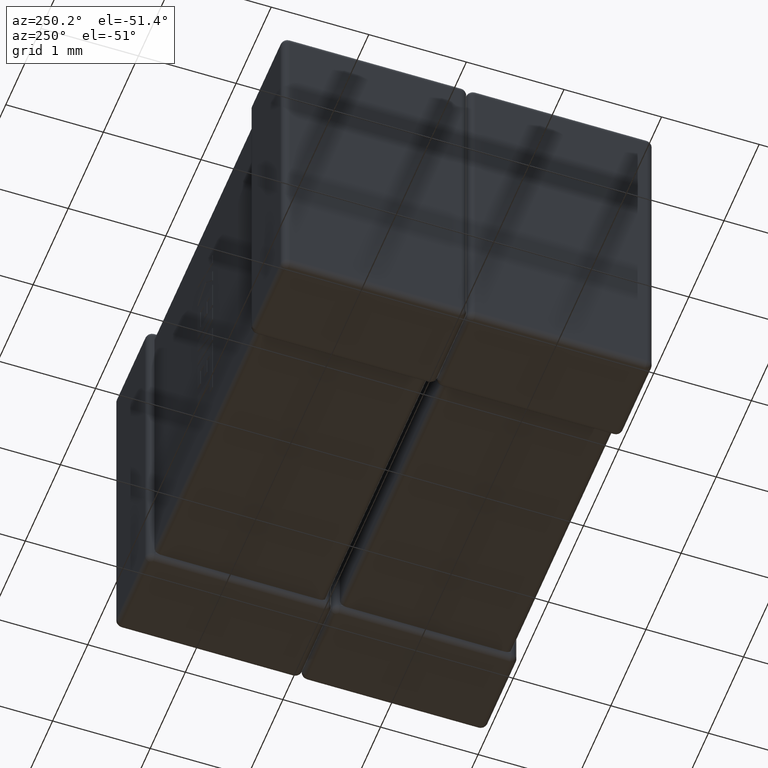
[diagram: clean part render]
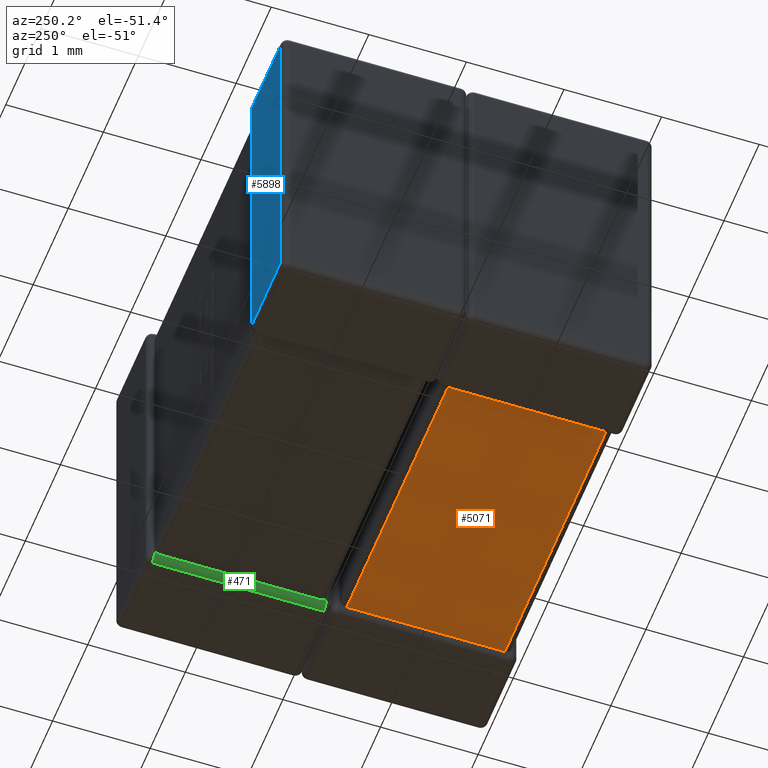
[diagram: same view with three faces highlighted in distinct colors, each labeled with its STEP entity id]
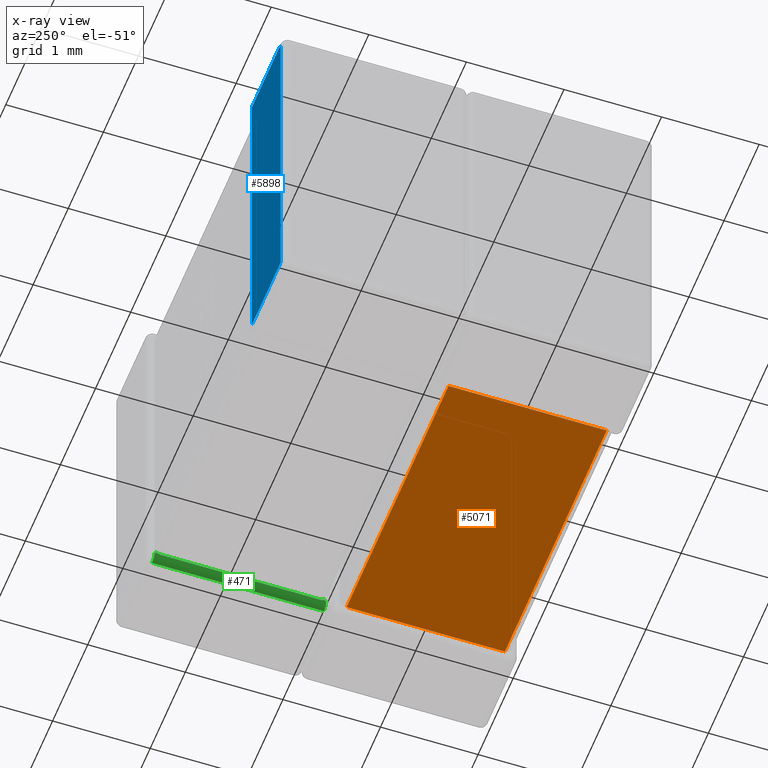
[diagram: x-ray of the same camera — body ghosted, the three highlighted faces saturated]
A machine part, auxiliary view with three faces highlighted in distinct colors.
The next image is the same camera in x-ray (body ghosted, the three faces saturated) — at least one of them is partly hidden behind the body in this view.
Their STEP definitions:

[orange] entity #5071 — the highlighted planar face has unit normal (0, 0, 1).
#65 = VERTEX_POINT ( 'NONE', #4843 ) ;
#176 = CARTESIAN_POINT ( 'NONE',  ( 0.9500000000000002887, 1.760000000000000009, -3.429999999999998828 ) ) ;
#547 = ORIENTED_EDGE ( 'NONE', *, *, #615, .F. ) ;
#615 = EDGE_CURVE ( 'NONE', #7312, #642, #2645, .T. ) ;
#642 = VERTEX_POINT ( 'NONE', #3820 ) ;
#774 = CARTESIAN_POINT ( 'NONE',  ( 3.849999999999999201, 0.1399999999999995415, -3.429999999999999716 ) ) ;
#973 = EDGE_LOOP ( 'NONE', ( #547, #2529, #3334, #4689 ) ) ;
#1096 = CARTESIAN_POINT ( 'NONE',  ( 0.9499999999999999556, 0.1399999999999995415, -3.429999999999998828 ) ) ;
#1136 = DIRECTION ( 'NONE',  ( -1.000000000000000000, 0.000000000000000000, 2.990902544787600071E-16 ) ) ;
#1615 = VECTOR ( 'NONE', #1136, 1000.000000000000000 ) ;
#1655 = CARTESIAN_POINT ( 'NONE',  ( 0.9500000000000002887, 0.000000000000000000, -3.429999999999998828 ) ) ;
#2100 = DIRECTION ( 'NONE',  ( 2.990902544787600071E-16, 0.000000000000000000, 1.000000000000000000 ) ) ;
#2108 = DIRECTION ( 'NONE',  ( -0.000000000000000000, 1.000000000000000000, -0.000000000000000000 ) ) ;
#2115 = EDGE_CURVE ( 'NONE', #7312, #65, #4350, .T. ) ;
#2139 = FACE_OUTER_BOUND ( 'NONE', #973, .T. ) ;
#2529 = ORIENTED_EDGE ( 'NONE', *, *, #2115, .T. ) ;
#2575 = LINE ( 'NONE', #4870, #3821 ) ;
#2645 = LINE ( 'NONE', #7189, #3088 ) ;
#2716 = PLANE ( 'NONE',  #5308 ) ;
#3088 = VECTOR ( 'NONE', #2108, 1000.000000000000000 ) ;
#3097 = EDGE_CURVE ( 'NONE', #7301, #642, #2575, .T. ) ;
#3316 = EDGE_CURVE ( 'NONE', #65, #7301, #5269, .T. ) ;
#3334 = ORIENTED_EDGE ( 'NONE', *, *, #3316, .T. ) ;
#3776 = CARTESIAN_POINT ( 'NONE',  ( 0.9500000000000002887, 0.000000000000000000, -3.429999999999998828 ) ) ;
#3820 = CARTESIAN_POINT ( 'NONE',  ( 3.849999999999999201, 1.760000000000000009, -3.429999999999999716 ) ) ;
#3821 = VECTOR ( 'NONE', #4313, 1000.000000000000000 ) ;
#4313 = DIRECTION ( 'NONE',  ( 1.000000000000000000, 0.000000000000000000, -2.990902544787600071E-16 ) ) ;
#4350 = LINE ( 'NONE', #1096, #1615 ) ;
#4689 = ORIENTED_EDGE ( 'NONE', *, *, #3097, .T. ) ;
#4843 = CARTESIAN_POINT ( 'NONE',  ( 0.9500000000000002887, 0.1399999999999995415, -3.429999999999998828 ) ) ;
#4870 = CARTESIAN_POINT ( 'NONE',  ( 0.9500000000000002887, 1.760000000000000009, -3.429999999999998828 ) ) ;
#5004 = VECTOR ( 'NONE', #6630, 1000.000000000000000 ) ;
#5071 = ADVANCED_FACE ( 'NONE', ( #2139 ), #2716, .F. ) ;
#5269 = LINE ( 'NONE', #3776, #5004 ) ;
#5308 = AXIS2_PLACEMENT_3D ( 'NONE', #1655, #2100, #6185 ) ;
#6185 = DIRECTION ( 'NONE',  ( 1.000000000000000000, 0.000000000000000000, -2.990902544787600071E-16 ) ) ;
#6630 = DIRECTION ( 'NONE',  ( -0.000000000000000000, 1.000000000000000000, -0.000000000000000000 ) ) ;
#7189 = CARTESIAN_POINT ( 'NONE',  ( 3.849999999999999201, 0.000000000000000000, -3.429999999999999716 ) ) ;
#7301 = VERTEX_POINT ( 'NONE', #176 ) ;
#7312 = VERTEX_POINT ( 'NONE', #774 ) ;

[blue] entity #5898 — the highlighted planar face has unit normal (0, -1, 0).
#267 = CARTESIAN_POINT ( 'NONE',  ( 0.8800000000000023359, 3.799999999999999822, -3.429999999999999716 ) ) ;
#451 = EDGE_CURVE ( 'NONE', #4696, #1264, #5386, .T. ) ;
#662 = VECTOR ( 'NONE', #7227, 1000.000000000000000 ) ;
#758 = ORIENTED_EDGE ( 'NONE', *, *, #2212, .F. ) ;
#952 = VERTEX_POINT ( 'NONE', #4997 ) ;
#1034 = PLANE ( 'NONE',  #5307 ) ;
#1109 = VECTOR ( 'NONE', #2826, 1000.000000000000000 ) ;
#1131 = EDGE_CURVE ( 'NONE', #952, #5365, #1273, .T. ) ;
#1264 = VERTEX_POINT ( 'NONE', #267 ) ;
#1273 = LINE ( 'NONE', #5153, #2932 ) ;
#1645 = LINE ( 'NONE', #3987, #1109 ) ;
#1694 = LINE ( 'NONE', #4971, #662 ) ;
#2212 = EDGE_CURVE ( 'NONE', #5365, #4696, #1694, .T. ) ;
#2283 = FACE_OUTER_BOUND ( 'NONE', #4918, .T. ) ;
#2682 = ORIENTED_EDGE ( 'NONE', *, *, #2718, .F. ) ;
#2718 = EDGE_CURVE ( 'NONE', #1264, #952, #1645, .T. ) ;
#2826 = DIRECTION ( 'NONE',  ( 0.000000000000000000, 0.000000000000000000, 1.000000000000000000 ) ) ;
#2932 = VECTOR ( 'NONE', #7338, 1000.000000000000000 ) ;
#3342 = CARTESIAN_POINT ( 'NONE',  ( 4.799999999999999822, 3.799999999999999822, 0.000000000000000000 ) ) ;
#3420 = VECTOR ( 'NONE', #7038, 1000.000000000000000 ) ;
#3987 = CARTESIAN_POINT ( 'NONE',  ( 0.8800000000000023359, 3.799999999999999822, 0.000000000000000000 ) ) ;
#4191 = ORIENTED_EDGE ( 'NONE', *, *, #1131, .F. ) ;
#4213 = CARTESIAN_POINT ( 'NONE',  ( 0.06999999999999975686, 3.799999999999999822, -3.429999999999999716 ) ) ;
#4310 = CARTESIAN_POINT ( 'NONE',  ( 4.799999999999999822, 3.799999999999999822, -3.429999999999999716 ) ) ;
#4696 = VERTEX_POINT ( 'NONE', #4213 ) ;
#4918 = EDGE_LOOP ( 'NONE', ( #6263, #758, #4191, #2682 ) ) ;
#4971 = CARTESIAN_POINT ( 'NONE',  ( 0.06999999999999975686, 3.799999999999999822, -3.500000000000000000 ) ) ;
#4997 = CARTESIAN_POINT ( 'NONE',  ( 0.8800000000000023359, 3.799999999999999822, -0.07000000000000000666 ) ) ;
#5153 = CARTESIAN_POINT ( 'NONE',  ( 4.799999999999999822, 3.799999999999999822, -0.07000000000000000666 ) ) ;
#5307 = AXIS2_PLACEMENT_3D ( 'NONE', #3342, #7067, #6479 ) ;
#5365 = VERTEX_POINT ( 'NONE', #7128 ) ;
#5386 = LINE ( 'NONE', #4310, #3420 ) ;
#5898 = ADVANCED_FACE ( 'NONE', ( #2283 ), #1034, .F. ) ;
#6263 = ORIENTED_EDGE ( 'NONE', *, *, #451, .F. ) ;
#6479 = DIRECTION ( 'NONE',  ( 0.000000000000000000, 0.000000000000000000, 1.000000000000000000 ) ) ;
#7038 = DIRECTION ( 'NONE',  ( 1.000000000000000000, -0.000000000000000000, -0.000000000000000000 ) ) ;
#7067 = DIRECTION ( 'NONE',  ( 0.000000000000000000, -1.000000000000000000, 0.000000000000000000 ) ) ;
#7128 = CARTESIAN_POINT ( 'NONE',  ( 0.06999999999999975686, 3.799999999999999822, -0.07000000000000000666 ) ) ;
#7227 = DIRECTION ( 'NONE',  ( 0.000000000000000000, 0.000000000000000000, -1.000000000000000000 ) ) ;
#7338 = DIRECTION ( 'NONE',  ( -1.000000000000000000, 0.000000000000000000, 0.000000000000000000 ) ) ;

[green] entity #471 — the highlighted cylindrical surface (edge-blend (fillet) strip) has radius 0.07 mm, axis along (0, -1, 0).
#83 = DIRECTION ( 'NONE',  ( 0.000000000000000000, 0.000000000000000000, -1.000000000000000000 ) ) ;
#186 = ORIENTED_EDGE ( 'NONE', *, *, #519, .T. ) ;
#274 = EDGE_LOOP ( 'NONE', ( #5439, #1519, #5663, #2704, #5701, #5356, #6414, #186 ) ) ;
#435 = DIRECTION ( 'NONE',  ( 0.000000000000000000, -1.000000000000000000, 0.000000000000000000 ) ) ;
#471 = ADVANCED_FACE ( 'NONE', ( #880 ), #2063, .T. ) ;
#496 = LINE ( 'NONE', #4531, #1867 ) ;
#519 = EDGE_CURVE ( 'NONE', #1306, #2284, #3304, .T. ) ;
#527 = CARTESIAN_POINT ( 'NONE',  ( 3.849999999999999201, 2.040000000000000036, -3.429999999999999716 ) ) ;
#563 = AXIS2_PLACEMENT_3D ( 'NONE', #840, #2538, #4832 ) ;
#606 = DIRECTION ( 'NONE',  ( 0.000000000000000000, 0.000000000000000000, 1.000000000000000000 ) ) ;
#684 = AXIS2_PLACEMENT_3D ( 'NONE', #6368, #6258, #83 ) ;
#737 = CARTESIAN_POINT ( 'NONE',  ( 3.849999999999999201, 2.040000000000000036, -3.429999999999999716 ) ) ;
#796 = CIRCLE ( 'NONE', #684, 0.07000000000000018707 ) ;
#822 = CARTESIAN_POINT ( 'NONE',  ( 3.919999999999999929, 3.729999999999999982, -3.500000000000000000 ) ) ;
#840 = CARTESIAN_POINT ( 'NONE',  ( 3.919999999999999929, 3.799999999999999822, -3.429999999999999716 ) ) ;
#880 = FACE_OUTER_BOUND ( 'NONE', #274, .T. ) ;
#888 = CARTESIAN_POINT ( 'NONE',  ( 3.849999999999999201, 1.969999999999999973, -3.429999999999999716 ) ) ;
#1148 = EDGE_CURVE ( 'NONE', #2247, #1306, #796, .T. ) ;
#1306 = VERTEX_POINT ( 'NONE', #822 ) ;
#1345 = CARTESIAN_POINT ( 'NONE',  ( 3.850019257285294039, 3.678154872626992145, -3.427999792939853130 ) ) ;
#1438 = CARTESIAN_POINT ( 'NONE',  ( 3.853069838969055638, 1.990502525316941718, -3.409497474683058194 ) ) ;
#1460 = CARTESIAN_POINT ( 'NONE',  ( 3.851515069394535029, 3.704421954649305349, -3.414572994716811749 ) ) ;
#1462 = EDGE_CURVE ( 'NONE', #3910, #4036, #496, .T. ) ;
#1501 = CARTESIAN_POINT ( 'NONE',  ( 3.849999999999999201, 3.660000000000000586, -3.429999999999999716 ) ) ;
#1519 = ORIENTED_EDGE ( 'NONE', *, *, #1802, .T. ) ;
#1600 = CARTESIAN_POINT ( 'NONE',  ( 3.849999999999999645, 3.730000000000000870, -3.429999999999999716 ) ) ;
#1733 = EDGE_CURVE ( 'NONE', #4036, #5388, #4232, .T. ) ;
#1802 = EDGE_CURVE ( 'NONE', #4796, #5388, #3641, .T. ) ;
#1867 = VECTOR ( 'NONE', #3957, 1000.000000000000000 ) ;
#1929 = CARTESIAN_POINT ( 'NONE',  ( 3.849999999999999201, 2.032235114787159791, -3.429999999999999716 ) ) ;
#2063 = CYLINDRICAL_SURFACE ( 'NONE', #563, 0.07000000000000018707 ) ;
#2247 = VERTEX_POINT ( 'NONE', #2984 ) ;
#2284 = VERTEX_POINT ( 'NONE', #5156 ) ;
#2385 = EDGE_CURVE ( 'NONE', #5874, #3910, #5461, .T. ) ;
#2538 = DIRECTION ( 'NONE',  ( 0.000000000000000000, -1.000000000000000000, 0.000000000000000000 ) ) ;
#2587 = CARTESIAN_POINT ( 'NONE',  ( 3.849999999999999201, 3.660000000000000586, -3.429999999999999716 ) ) ;
#2704 = ORIENTED_EDGE ( 'NONE', *, *, #1462, .F. ) ;
#2984 = CARTESIAN_POINT ( 'NONE',  ( 3.849999999999999645, 3.730000000000000870, -3.429999999999999716 ) ) ;
#3044 = CARTESIAN_POINT ( 'NONE',  ( 3.853069838969055638, 1.990502525316941718, -3.409497474683058194 ) ) ;
#3071 = CARTESIAN_POINT ( 'NONE',  ( 3.850418438474917160, 3.691804557360128136, -3.422357598824251834 ) ) ;
#3304 = LINE ( 'NONE', #5003, #4717 ) ;
#3503 = CARTESIAN_POINT ( 'NONE',  ( 3.852013834189012442, 1.994468557925224372, -3.413239379723198130 ) ) ;
#3541 = CARTESIAN_POINT ( 'NONE',  ( 3.849966113360893782, 2.024364036696784996, -3.428671610840414719 ) ) ;
#3641 =( BOUNDED_CURVE ( )  B_SPLINE_CURVE ( 3, ( #888, #7087, #7198, #1438 ),
 .UNSPECIFIED., .F., .T. ) 
 B_SPLINE_CURVE_WITH_KNOTS ( ( 4, 4 ),
 ( 1.570796326794896558, 1.868047688116105443 ),
 .UNSPECIFIED. ) 
 CURVE ( )  GEOMETRIC_REPRESENTATION_ITEM ( )  RATIONAL_B_SPLINE_CURVE ( ( 1.000000000000000000, 0.9926503465430337458, 0.9926503465430337458, 1.000000000000000000 ) ) 
 REPRESENTATION_ITEM ( '' )  );
#3731 = CARTESIAN_POINT ( 'NONE',  ( 3.853069838969055638, 1.990502525316941718, -3.409497474683058194 ) ) ;
#3910 = VERTEX_POINT ( 'NONE', #2587 ) ;
#3944 = EDGE_CURVE ( 'NONE', #2247, #5874, #5927, .T. ) ;
#3957 = DIRECTION ( 'NONE',  ( 0.000000000000000000, -1.000000000000000000, 0.000000000000000000 ) ) ;
#4036 = VERTEX_POINT ( 'NONE', #527 ) ;
#4223 = CARTESIAN_POINT ( 'NONE',  ( 3.850053639568372876, 3.685292504830456117, -3.425678973478138545 ) ) ;
#4232 = B_SPLINE_CURVE_WITH_KNOTS ( 'NONE', 3,
 ( #737, #1929, #3541, #6978, #6942, #4730, #6306, #3503, #6420, #3044 ),
 .UNSPECIFIED., .F., .F.,
 ( 4, 3, 3, 4 ),
 ( 0.000000000000000000, 2.329465563853478372E-05, 4.663741647194851532E-05, 5.484644941049075144E-05 ),
 .UNSPECIFIED. ) ;
#4371 = CARTESIAN_POINT ( 'NONE',  ( 3.850000000000000089, 3.723038477005620184, -3.423038477005619473 ) ) ;
#4531 = CARTESIAN_POINT ( 'NONE',  ( 3.849999999999999201, 3.799999999999999822, -3.429999999999999716 ) ) ;
#4609 = CIRCLE ( 'NONE', #4936, 0.07000000000000018707 ) ;
#4717 = VECTOR ( 'NONE', #435, 1000.000000000000000 ) ;
#4730 = CARTESIAN_POINT ( 'NONE',  ( 3.850587648840690047, 2.002669244524287961, -3.419713753185586569 ) ) ;
#4796 = VERTEX_POINT ( 'NONE', #6845 ) ;
#4824 = EDGE_CURVE ( 'NONE', #4796, #2284, #4609, .T. ) ;
#4832 = DIRECTION ( 'NONE',  ( 0.000000000000000000, 0.000000000000000000, 1.000000000000000000 ) ) ;
#4936 = AXIS2_PLACEMENT_3D ( 'NONE', #5109, #5144, #606 ) ;
#5003 = CARTESIAN_POINT ( 'NONE',  ( 3.919999999999999929, 3.799999999999999822, -3.500000000000000000 ) ) ;
#5109 = CARTESIAN_POINT ( 'NONE',  ( 3.919999999999999929, 1.969999999999999973, -3.429999999999999716 ) ) ;
#5144 = DIRECTION ( 'NONE',  ( 0.000000000000000000, -1.000000000000000000, 0.000000000000000000 ) ) ;
#5156 = CARTESIAN_POINT ( 'NONE',  ( 3.919999999999999929, 1.969999999999999973, -3.500000000000000000 ) ) ;
#5356 = ORIENTED_EDGE ( 'NONE', *, *, #3944, .F. ) ;
#5388 = VERTEX_POINT ( 'NONE', #3731 ) ;
#5439 = ORIENTED_EDGE ( 'NONE', *, *, #4824, .F. ) ;
#5461 = B_SPLINE_CURVE_WITH_KNOTS ( 'NONE', 3,
 ( #7105, #1460, #6437, #3071, #4223, #1345, #7072, #6007, #6485, #1501 ),
 .UNSPECIFIED., .F., .F.,
 ( 4, 3, 3, 4 ),
 ( 0.000000000000000000, 2.203297621528411477E-05, 4.394974133713152968E-05, 5.478463513888982839E-05 ),
 .UNSPECIFIED. ) ;
#5479 = CARTESIAN_POINT ( 'NONE',  ( 3.851030856091388177, 3.716153701183551483, -3.416153701183551661 ) ) ;
#5663 = ORIENTED_EDGE ( 'NONE', *, *, #1733, .F. ) ;
#5701 = ORIENTED_EDGE ( 'NONE', *, *, #2385, .F. ) ;
#5874 = VERTEX_POINT ( 'NONE', #6055 ) ;
#5927 =( BOUNDED_CURVE ( )  B_SPLINE_CURVE ( 3, ( #1600, #4371, #5479, #6626 ),
 .UNSPECIFIED., .F., .T. ) 
 B_SPLINE_CURVE_WITH_KNOTS ( ( 4, 4 ),
 ( 1.570796326794890341, 1.868047688116099669 ),
 .UNSPECIFIED. ) 
 CURVE ( )  GEOMETRIC_REPRESENTATION_ITEM ( )  RATIONAL_B_SPLINE_CURVE ( ( 1.000000000000000000, 0.9926503465430336348, 0.9926503465430336348, 1.000000000000000000 ) ) 
 REPRESENTATION_ITEM ( '' )  );
#6007 = CARTESIAN_POINT ( 'NONE',  ( 3.849998269037859799, 3.667317119146955129, -3.429712294690644203 ) ) ;
#6055 = CARTESIAN_POINT ( 'NONE',  ( 3.853069838969055638, 3.709497474683058460, -3.409497474683058638 ) ) ;
#6258 = DIRECTION ( 'NONE',  ( 0.000000000000000000, -1.000000000000000000, 0.000000000000000000 ) ) ;
#6306 = CARTESIAN_POINT ( 'NONE',  ( 3.851638929392144473, 1.996624292274350454, -3.414941313956794122 ) ) ;
#6368 = CARTESIAN_POINT ( 'NONE',  ( 3.919999999999999929, 3.729999999999999982, -3.429999999999999716 ) ) ;
#6414 = ORIENTED_EDGE ( 'NONE', *, *, #1148, .T. ) ;
#6420 = CARTESIAN_POINT ( 'NONE',  ( 3.852483002674707446, 1.992418242870362954, -3.411413192236805170 ) ) ;
#6437 = CARTESIAN_POINT ( 'NONE',  ( 3.850784487112616006, 3.698338918934004127, -3.419024845777203669 ) ) ;
#6485 = CARTESIAN_POINT ( 'NONE',  ( 3.849999999999999645, 3.663652986787932164, -3.429999999999999716 ) ) ;
#6626 = CARTESIAN_POINT ( 'NONE',  ( 3.853069838969055638, 3.709497474683058460, -3.409497474683058638 ) ) ;
#6845 = CARTESIAN_POINT ( 'NONE',  ( 3.849999999999999201, 1.969999999999999973, -3.429999999999999716 ) ) ;
#6942 = CARTESIAN_POINT ( 'NONE',  ( 3.850248814182041457, 2.009688719547965352, -3.423573808212938996 ) ) ;
#6978 = CARTESIAN_POINT ( 'NONE',  ( 3.850107388028410682, 2.017030310029524376, -3.426124075363366384 ) ) ;
#7072 = CARTESIAN_POINT ( 'NONE',  ( 3.850005256654396302, 3.670925332060846813, -3.429142151538408179 ) ) ;
#7087 = CARTESIAN_POINT ( 'NONE',  ( 3.849999999999999645, 1.976961522994380660, -3.423038477005619029 ) ) ;
#7105 = CARTESIAN_POINT ( 'NONE',  ( 3.853069838969055638, 3.709497474683058460, -3.409497474683058638 ) ) ;
#7198 = CARTESIAN_POINT ( 'NONE',  ( 3.851030856091387733, 1.983846298816448694, -3.416153701183551217 ) ) ;